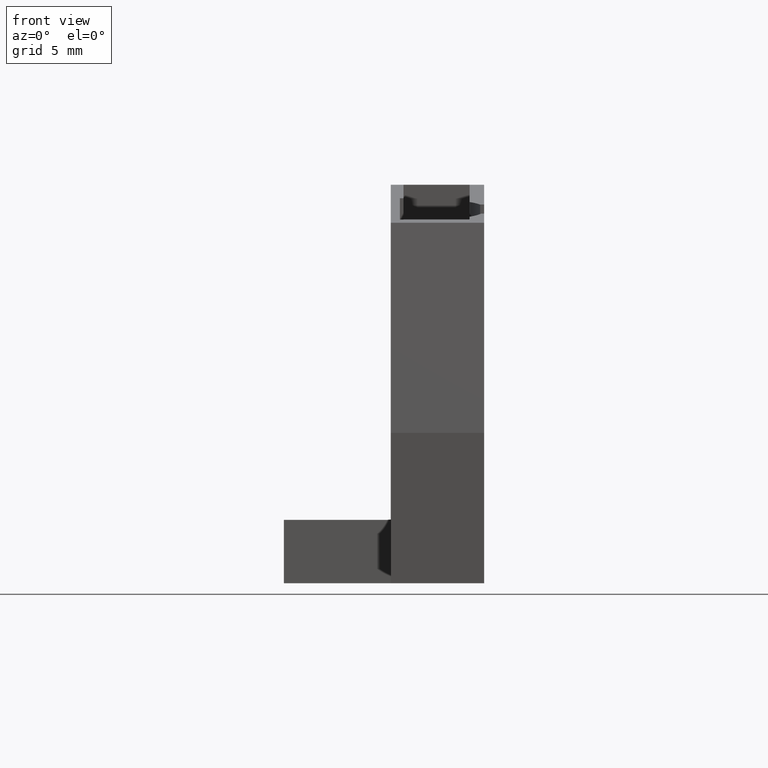
[diagram: clean part render]
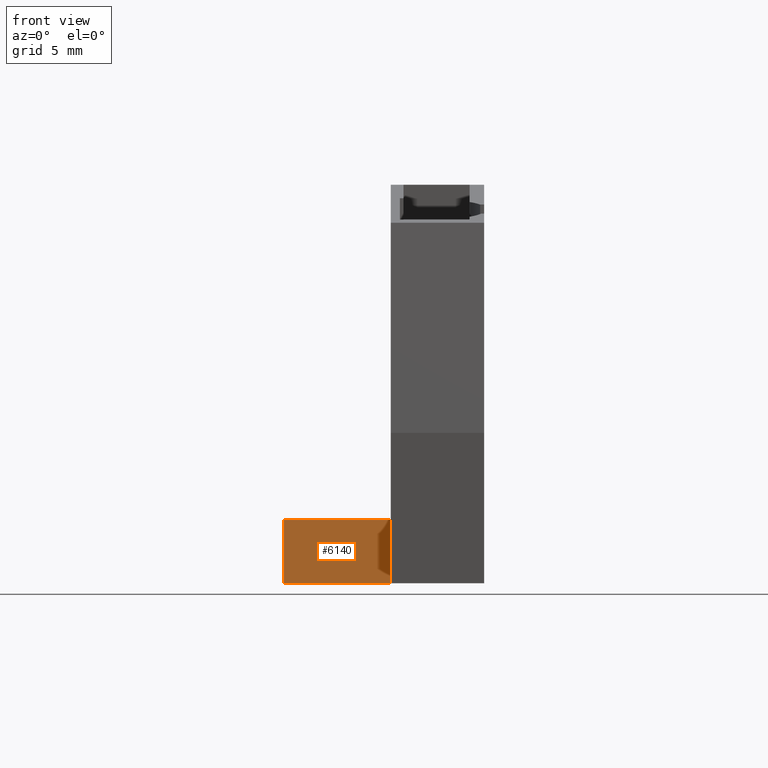
[diagram: same view with one face highlighted and labeled with its STEP entity id]
A machine part, front view. The second image highlights one B-rep face of the part: STEP entity #6140.
In plain terms, the highlighted planar face has unit normal (0.1736, 0.9848, 0).
Its self-contained STEP definition (entity closure, byte-faithful):
#3670=CARTESIAN_POINT('',(10.8832224188404,121.211739355575,60.2));
#3680=VERTEX_POINT('',#3670);
#3710=CARTESIAN_POINT('',(30.7687890493702,126.54006087526,
60.2000000000001));
#3720=DIRECTION('',(-0.965925826289068,-0.25881904510252,
-4.08006961549747E-15));
#3730=VECTOR('',#3720,1.);
#3740=LINE('',#3710,#3730);
#3750=CARTESIAN_POINT('',(7.50248202682872,120.305872697716,60.2));
#3760=VERTEX_POINT('',#3750);
#3770=EDGE_CURVE('',#3680,#3760,#3740,.T.);
#5330=CARTESIAN_POINT('',(4.75514782430762,130.559063526896,
-3.5527136788005E-15));
#5340=DIRECTION('',(-0.044943455527548,0.167731259496521,
-0.984807753012208));
#5350=VECTOR('',#5340,1.);
#5360=LINE('',#5330,#5350);
#5370=CARTESIAN_POINT('',(7.7717390333881,119.300991868942,66.1));
#5380=VERTEX_POINT('',#5370);
#5390=EDGE_CURVE('',#5380,#3760,#5360,.T.);
#5910=CARTESIAN_POINT('',(11.1524794253998,120.206858526801,66.1));
#5920=DIRECTION('',(0.254887002244179,-0.951251242564198,
-0.173648177666931));
#5930=DIRECTION('',(0.0449434555275479,-0.167731259496521,
0.984807753012208));
#5940=AXIS2_PLACEMENT_3D('',#5910,#5920,#5930);
#5950=PLANE('',#5940);
#5960=CARTESIAN_POINT('',(8.13588821631933,131.464930184755,
-3.5527136788005E-15));
#5970=DIRECTION('',(-0.0449434555275479,0.167731259496521,
-0.984807753012208));
#5980=VECTOR('',#5970,1.);
#5990=LINE('',#5960,#5980);
#6000=CARTESIAN_POINT('',(11.1524794253998,120.206858526801,66.1));
#6010=VERTEX_POINT('',#6000);
#6020=EDGE_CURVE('',#6010,#3680,#5990,.T.);
#6030=ORIENTED_EDGE('',*,*,#6020,.T.);
#6040=CARTESIAN_POINT('',(0.,117.21856067116,66.1));
#6050=DIRECTION('',(-0.965925826289068,-0.258819045102521,
-7.88860905221012E-31));
#6060=VECTOR('',#6050,1.);
#6070=LINE('',#6040,#6060);
#6080=EDGE_CURVE('',#6010,#5380,#6070,.T.);
#6090=ORIENTED_EDGE('',*,*,#6080,.F.);
#6100=ORIENTED_EDGE('',*,*,#5390,.F.);
#6110=ORIENTED_EDGE('',*,*,#3770,.T.);
#6120=EDGE_LOOP('',(#6110,#6100,#6090,#6030));
#6130=FACE_OUTER_BOUND('',#6120,.T.);
#6140=ADVANCED_FACE('',(#6130),#5950,.F.);